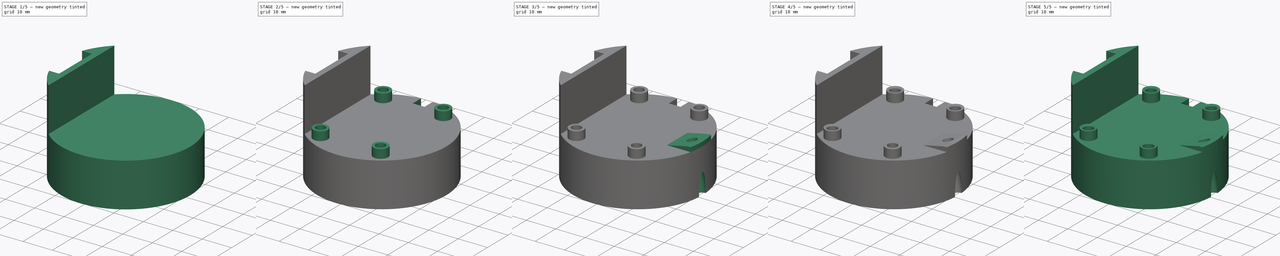
[diagram: build sequence overview — one tinted view per stage of 5, left to right]
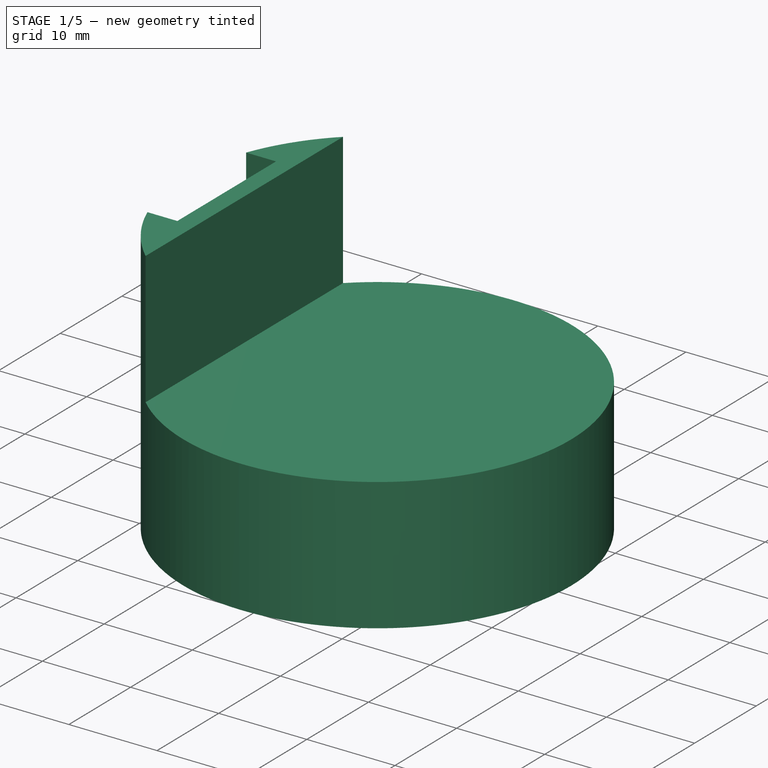
[diagram: stage 1 of 5 — iso view after this stage's code; geometry added in this stage tinted green]
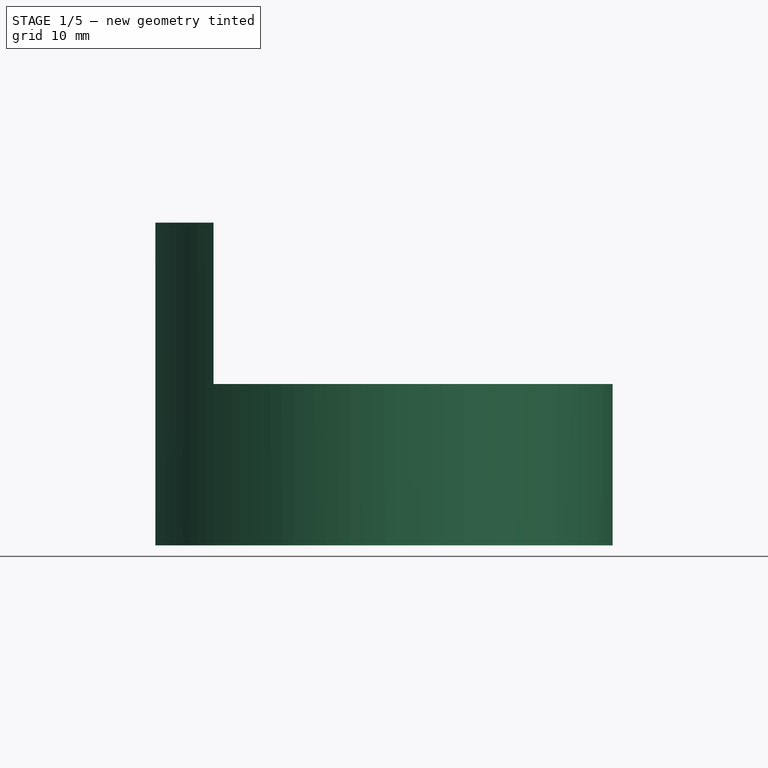
[diagram: stage 1 of 5 — front view after this stage's code; geometry added in this stage tinted green]
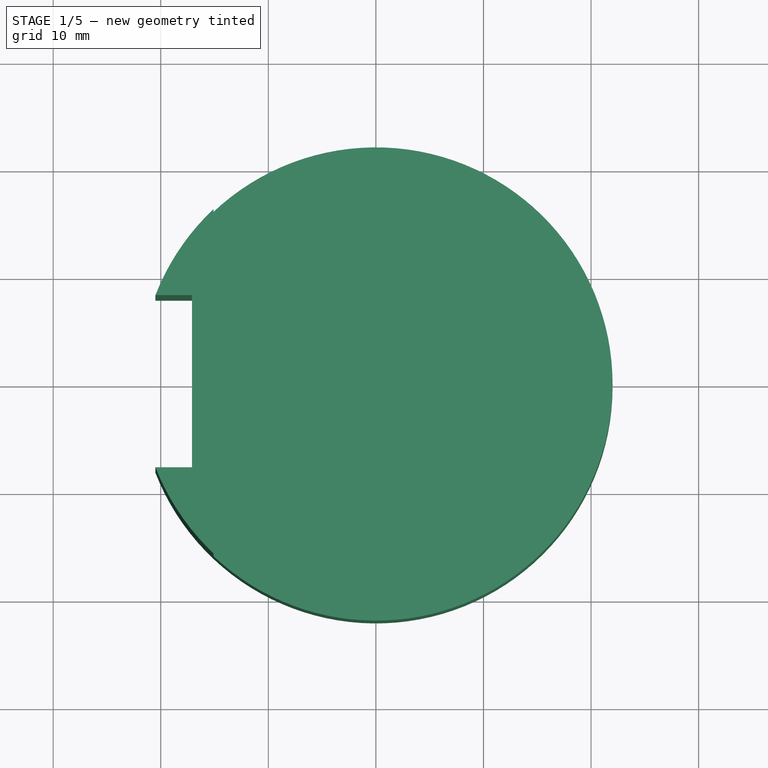
[diagram: stage 1 of 5 — top view after this stage's code; geometry added in this stage tinted green]
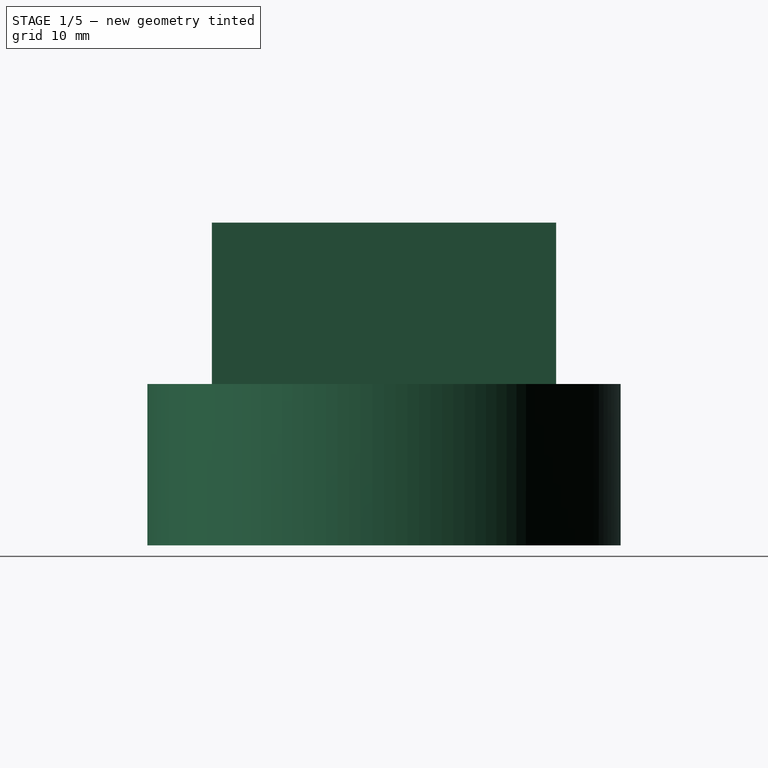
[diagram: stage 1 of 5 — right view after this stage's code; geometry added in this stage tinted green]
FCSTD DOCUMENT  (FreeCAD 0.14R3700 (Git))
Label: ComsMountTop
License: CC-BY 3.0
LicenseURL: http://creativecommons.org/licenses/by/3.0/
objects: Sketcher::SketchObject×11, PartDesign::Pocket×6, PartDesign::Chamfer×6, PartDesign::Pad×5
note: 39 computed .brp shape members not serialized (recipe doc carries the construction recipe); baked Part::Feature solids carry a one-line shape summary decoded from their .brp

FEATURE [Sketcher::SketchObject] Sketch
  sketch-geometry (1):
    g0: Circle CenterX=0 CenterY=0 CenterZ=0 NormalX=0 NormalY=0 NormalZ=1 Radius=22
  constraints (2):
    c: Coincident(g0,g-1)
    c: Radius(g0) = 22
FEATURE [PartDesign::Pad] Pad
  Length = 15
  Length2 = 100
  Sketch = -> Sketch
  Type = 0
FEATURE [Sketcher::SketchObject] Sketch001
  ExternalGeometry = -> [Pad]
  Placement = pos=(0,0,15) rot=(0,0,1;0rad)
  Support = -> Pad [Face3]
  sketch-geometry (2):
    g0: ArcOfCircle CenterX=0 CenterY=0 CenterZ=0 NormalX=0 NormalY=0 NormalZ=1 Radius=22 StartAngle=2.32725 EndAngle=3.95593
    g1: LineSegment StartX=-15.0997 StartY=16 StartZ=0 EndX=-15.0997 EndY=-16 EndZ=0
  constraints (6):
    c: Coincident(g-1,g0)
    c: Equal(g0,g-3)
    c: Coincident(g1,g0)
    c: Coincident(g1,g0)
    c: Symmetric(g0,g0,g-1)
    c: DistanceY(g0,g0) = -32
FEATURE [PartDesign::Pad] Pad001
  Length = 15
  Length2 = 100
  Sketch = -> Sketch001
  Type = 0
FEATURE [Sketcher::SketchObject] Sketch002
  ExternalGeometry = -> [Pad001]
  Placement = pos=(0,0,30) rot=(0,0,1;0rad)
  Support = -> Pad001 [Face6]
  sketch-geometry (4):
    g0: ArcOfCircle CenterX=0 CenterY=0 CenterZ=0 NormalX=0 NormalY=0 NormalZ=1 Radius=22 StartAngle=2.76942 EndAngle=3.51376
    g1: LineSegment StartX=-20.4939 StartY=8 StartZ=0 EndX=-17.0997 EndY=8 EndZ=0
    g2: LineSegment StartX=-17.0997 StartY=8 StartZ=0 EndX=-17.0997 EndY=-8 EndZ=0
    g3: LineSegment StartX=-20.4939 StartY=-8 StartZ=0 EndX=-17.0997 EndY=-8 EndZ=0
  constraints (12):
    c: Coincident(g0,g-1)
    c: Coincident(g1,g0)
    c: Horizontal(g1)
    c: Coincident(g2,g1)
    c: Vertical(g2)
    c: Coincident(g3,g0)
    c: Coincident(g3,g2)
    c: Horizontal(g3)
    c: Equal(g0,g-3)
    c: Symmetric(g1,g2,g-1)
    c: DistanceY(g1,g2) = -16
    c: DistanceX(g1,g-3) = 2
FEATURE [PartDesign::Pocket] Pocket
  Length = 5
  Sketch = -> Sketch002
  Type = 1
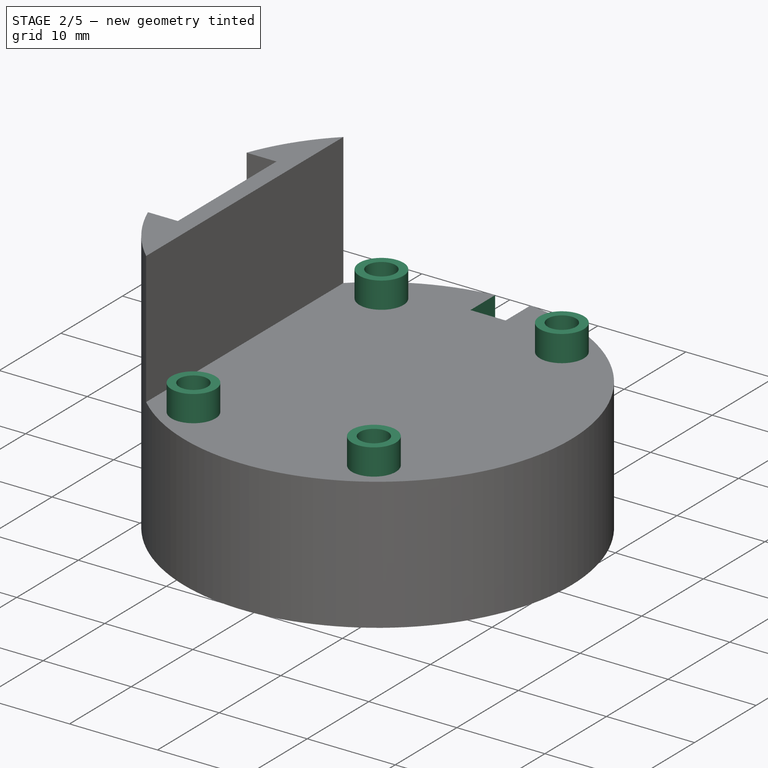
[diagram: stage 2 of 5 — iso view after this stage's code; geometry added in this stage tinted green]
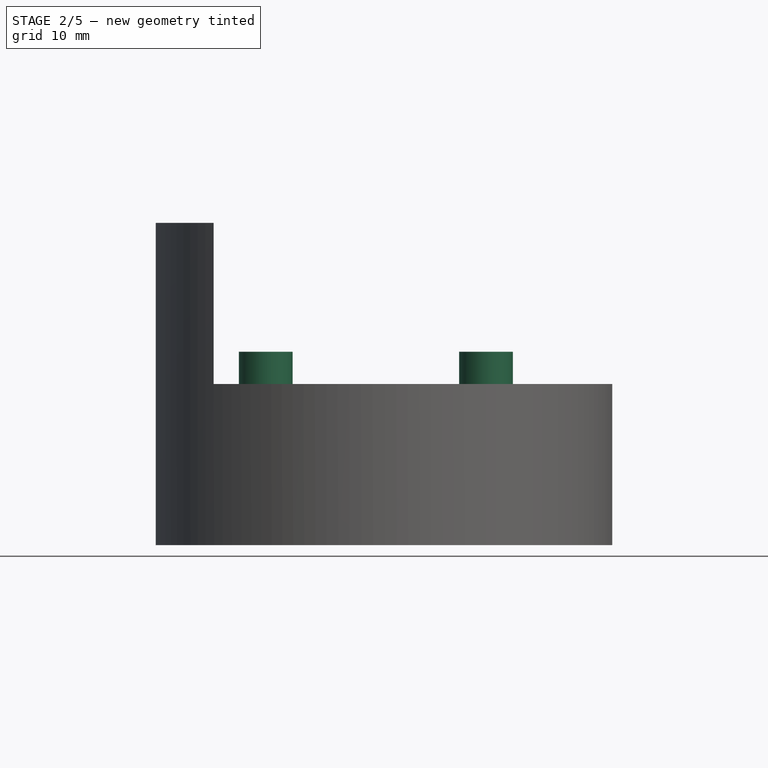
[diagram: stage 2 of 5 — front view after this stage's code; geometry added in this stage tinted green]
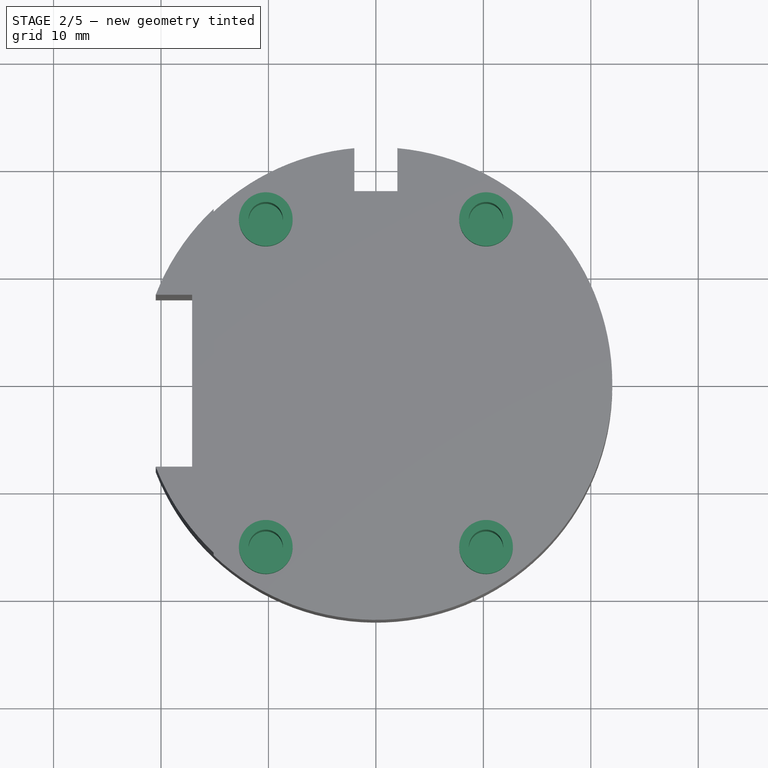
[diagram: stage 2 of 5 — top view after this stage's code; geometry added in this stage tinted green]
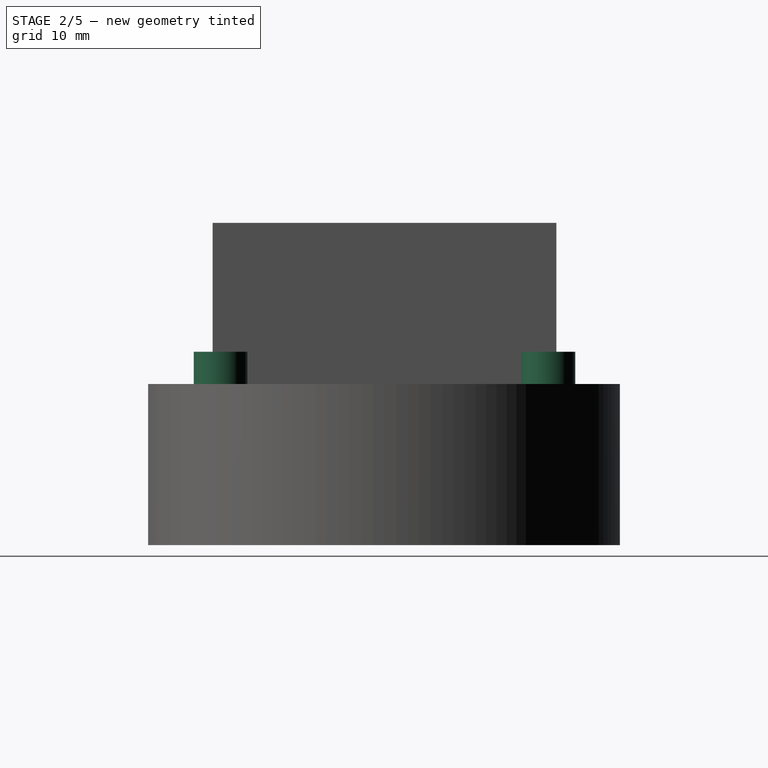
[diagram: stage 2 of 5 — right view after this stage's code; geometry added in this stage tinted green]
FEATURE [Sketcher::SketchObject] Sketch003
  Placement = pos=(0,0,15) rot=(0,0,1;0rad)
  Support = -> Pocket [Face8]
  sketch-geometry (8):
    g0: LineSegment [constr] StartX=-10.25 StartY=15.25 StartZ=0 EndX=10.25 EndY=15.25 EndZ=0
    g1: LineSegment [constr] StartX=10.25 StartY=15.25 StartZ=0 EndX=10.25 EndY=-15.25 EndZ=0
    g2: LineSegment [constr] StartX=10.25 StartY=-15.25 StartZ=0 EndX=-10.25 EndY=-15.25 EndZ=0
    g3: LineSegment [constr] StartX=-10.25 StartY=15.25 StartZ=0 EndX=-10.25 EndY=-15.25 EndZ=0
    g4: Circle CenterX=-10.25 CenterY=15.25 CenterZ=0 NormalX=0 NormalY=0 NormalZ=1 Radius=2.5
    g5: Circle CenterX=10.25 CenterY=15.25 CenterZ=0 NormalX=0 NormalY=0 NormalZ=1 Radius=2.5
    g6: Circle CenterX=-10.25 CenterY=-15.25 CenterZ=0 NormalX=0 NormalY=0 NormalZ=1 Radius=2.5
    g7: Circle CenterX=10.25 CenterY=-15.25 CenterZ=0 NormalX=0 NormalY=0 NormalZ=1 Radius=2.5
  constraints (20):
    c: Horizontal(g0)
    c: Coincident(g1,g0)
    c: Vertical(g1)
    c: Coincident(g3,g0)
    c: Coincident(g3,g2)
    c: Vertical(g3)
    c: Symmetric(g0,g0,g-2)
    c: Symmetric(g0,g1,g-1)
    c: Coincident(g2,g1)
    c: Horizontal(g2)
    c: DistanceY(g0,g1) = -30.5
    c: DistanceX(g0,g0) = 20.5
    c: Coincident(g4,g0)
    c: Coincident(g5,g0)
    c: Coincident(g6,g2)
    c: Coincident(g7,g1)
    c: Equal(g5,g4)
    c: Equal(g5,g7)
    c: Equal(g6,g7)
    c: Radius(g4) = 2.5
FEATURE [PartDesign::Pad] Pad002
  Length = 3
  Length2 = 100
  Sketch = -> Sketch003
  Type = 0
FEATURE [Sketcher::SketchObject] Sketch004
  ExternalGeometry = -> [Pad002]
  Placement = pos=(0,0,18) rot=(0,0,1;0rad)
  Support = -> Pad002 [Face19]
  sketch-geometry (4):
    g0: Circle CenterX=-10.25 CenterY=15.25 CenterZ=0 NormalX=0 NormalY=0 NormalZ=1 Radius=1.6
    g1: Circle CenterX=10.25 CenterY=15.25 CenterZ=0 NormalX=0 NormalY=0 NormalZ=1 Radius=1.6
    g2: Circle CenterX=-10.25 CenterY=-15.25 CenterZ=0 NormalX=0 NormalY=0 NormalZ=1 Radius=1.6
    g3: Circle CenterX=10.25 CenterY=-15.25 CenterZ=0 NormalX=0 NormalY=0 NormalZ=1 Radius=1.6
  constraints (8):
    c: Coincident(g0,g-3)
    c: Coincident(g1,g-4)
    c: Coincident(g2,g-6)
    c: Coincident(g3,g-5)
    c: Equal(g0,g1)
    c: Equal(g1,g3)
    c: Equal(g2,g3)
    c: Radius(g0) = 1.6
FEATURE [PartDesign::Pocket] Pocket001
  Length = 10
  Sketch = -> Sketch004
  Type = 0
FEATURE [Sketcher::SketchObject] Sketch005
  ExternalGeometry = -> [Pocket001]
  Placement = pos=(0,0,15) rot=(0,0,1;0rad)
  Support = -> Pocket001 [Face8]
  sketch-geometry (4):
    g0: ArcOfCircle CenterX=0 CenterY=0 CenterZ=0 NormalX=0 NormalY=0 NormalZ=1 Radius=22 StartAngle=1.47976 EndAngle=1.66183
    g1: LineSegment StartX=-2 StartY=21.9089 StartZ=0 EndX=-2 EndY=17.9089 EndZ=0
    g2: LineSegment StartX=-2 StartY=17.9089 StartZ=0 EndX=2 EndY=17.9089 EndZ=0
    g3: LineSegment StartX=2 StartY=21.9089 StartZ=0 EndX=2 EndY=17.9089 EndZ=0
  constraints (12):
    c: Coincident(g0,g-1)
    c: Coincident(g1,g0)
    c: Vertical(g1)
    c: Coincident(g2,g1)
    c: Horizontal(g2)
    c: Coincident(g3,g0)
    c: Coincident(g3,g2)
    c: Vertical(g3)
    c: Equal(g0,g-3)
    c: Symmetric(g2,g1,g-2)
    c: DistanceY(g2,g0) = 4
    c: DistanceX(g1,g2) = 4
FEATURE [PartDesign::Pocket] Pocket002
  Length = 5
  Sketch = -> Sketch005
  Type = 1
FEATURE [Sketcher::SketchObject] Sketch006
  ExternalGeometry = -> [Pocket002]
  Placement = pos=(-17.0997,0,0) rot=(0.57735,-0.57735,-0.57735;2.0944rad)
  Support = -> Pocket002 [Face8]
  sketch-geometry (4):
    g0: LineSegment StartX=-8 StartY=6.5 StartZ=0 EndX=8 EndY=6.5 EndZ=0
    g1: LineSegment StartX=8 StartY=6.5 StartZ=0 EndX=8 EndY=0 EndZ=0
    g2: LineSegment StartX=8 StartY=0 StartZ=0 EndX=-8 EndY=0 EndZ=0
    g3: LineSegment StartX=-8 StartY=0 StartZ=0 EndX=-8 EndY=6.5 EndZ=0
  constraints (12):
    c: Coincident(g0,g1)
    c: Coincident(g1,g2)
    c: Coincident(g2,g3)
    c: Coincident(g3,g0)
    c: Horizontal(g0)
    c: Horizontal(g2)
    c: Vertical(g1)
    c: Vertical(g3)
    c: PointOnObject(g1,g-5)
    c: PointOnObject(g1,g-4)
    c: PointOnObject(g2,g-3)
    c: DistanceY(g0,g1) = -6.5
FEATURE [PartDesign::Pocket] Pocket003
  Length = 12
  Sketch = -> Sketch006
  Type = 0
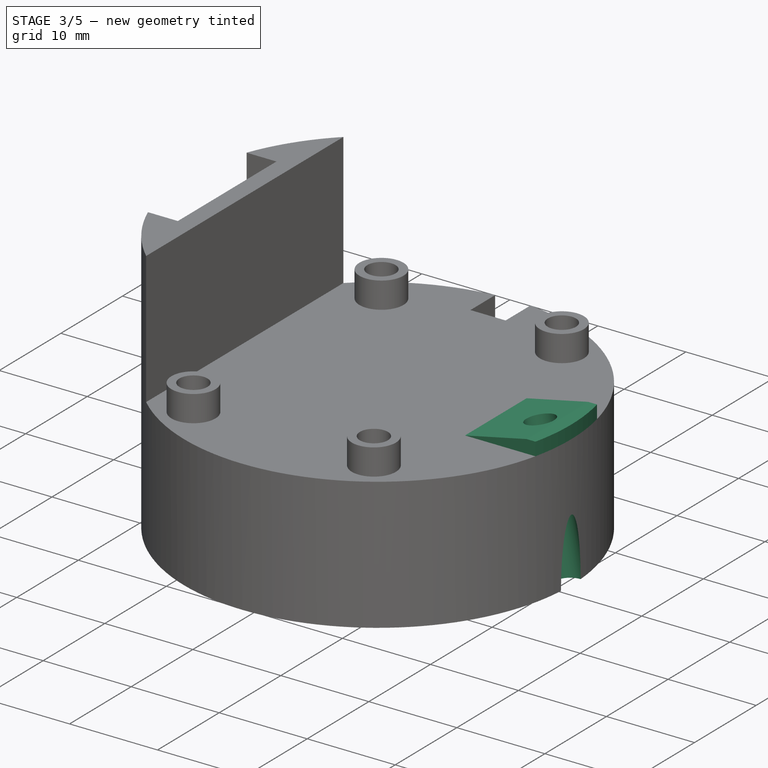
[diagram: stage 3 of 5 — iso view after this stage's code; geometry added in this stage tinted green]
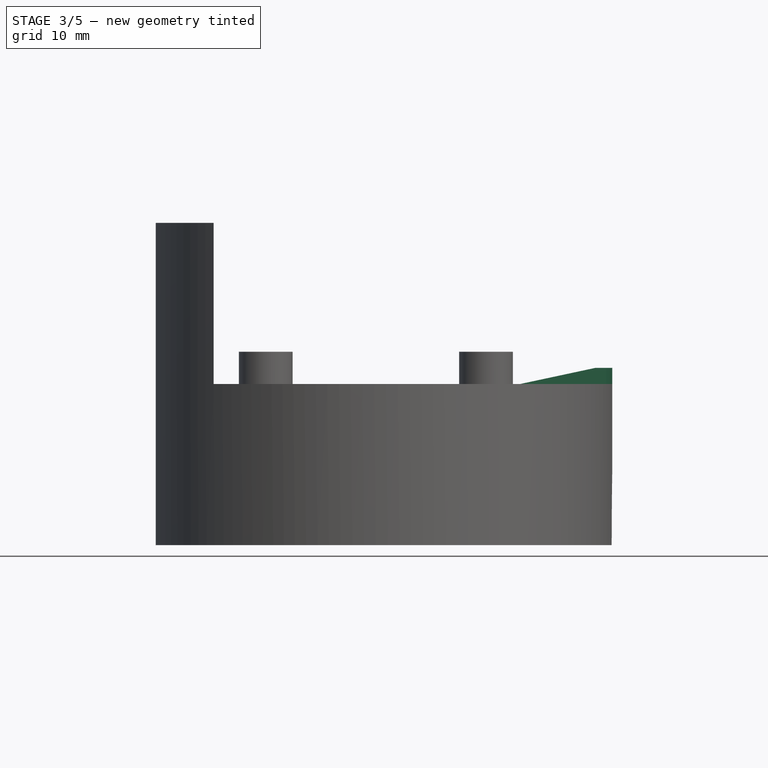
[diagram: stage 3 of 5 — front view after this stage's code; geometry added in this stage tinted green]
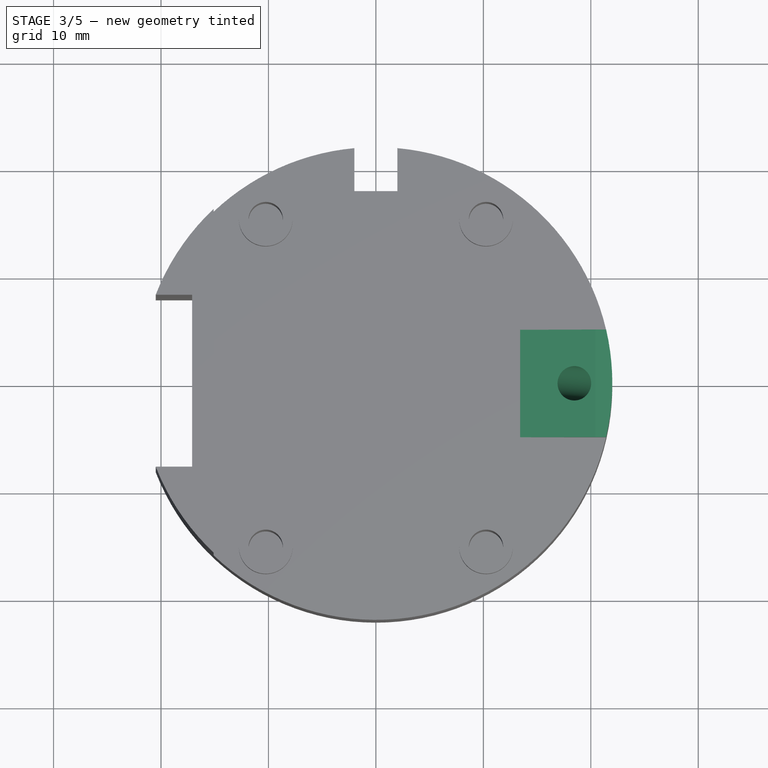
[diagram: stage 3 of 5 — top view after this stage's code; geometry added in this stage tinted green]
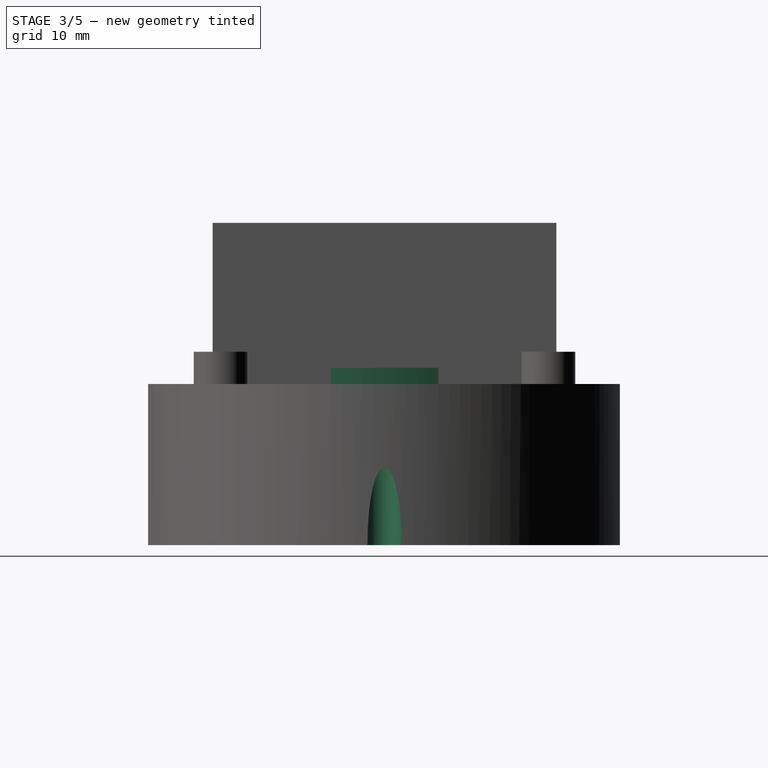
[diagram: stage 3 of 5 — right view after this stage's code; geometry added in this stage tinted green]
FEATURE [Sketcher::SketchObject] Sketch007
  ExternalGeometry = -> [Pocket003]
  Placement = pos=(0,0,15) rot=(0,0,1;0rad)
  Support = -> Pocket003 [Face13]
  sketch-geometry (4):
    g0: ArcOfCircle CenterX=0 CenterY=0 CenterZ=0 NormalX=0 NormalY=0 NormalZ=1 Radius=22 StartAngle=6.05391 EndAngle=6.51246
    g1: LineSegment StartX=21.4243 StartY=5 StartZ=0 EndX=20.4243 EndY=5 EndZ=0
    g2: LineSegment StartX=20.4243 StartY=5 StartZ=0 EndX=20.4243 EndY=-5 EndZ=0
    g3: LineSegment StartX=20.4243 StartY=-5 StartZ=0 EndX=21.4243 EndY=-5 EndZ=0
  constraints (12):
    c: Coincident(g0,g-1)
    c: Equal(g0,g-3)
    c: Symmetric(g0,g0,g-1)
    c: DistanceY(g0,g0) = -10
    c: Coincident(g1,g0)
    c: Horizontal(g1)
    c: Coincident(g2,g1)
    c: Vertical(g2)
    c: Coincident(g3,g2)
    c: Coincident(g3,g0)
    c: Horizontal(g3)
    c: DistanceX(g1,g0) = 1
FEATURE [PartDesign::Pad] Pad003
  Length = 1.5
  Length2 = 100
  Sketch = -> Sketch007
  Type = 0
FEATURE [Sketcher::SketchObject] Sketch008
  ExternalGeometry = -> [Pad003]
  Placement = pos=(0,-5,0) rot=(1,0,0;1.5708rad)
  Support = -> Pad003 [Face20]
  sketch-geometry (3):
    g0: LineSegment StartX=20.4243 StartY=16.5 StartZ=0 EndX=13.4243 EndY=15 EndZ=0
    g1: LineSegment StartX=13.4243 StartY=15 StartZ=0 EndX=20.4243 EndY=15 EndZ=0
    g2: LineSegment StartX=20.4243 StartY=15 StartZ=0 EndX=20.4243 EndY=16.5 EndZ=0
  constraints (7):
    c: Coincident(g0,g-4)
    c: Coincident(g1,g0)
    c: Horizontal(g1)
    c: Coincident(g1,g-4)
    c: DistanceX(g1,g0) = -7
    c: Coincident(g2,g1)
    c: Coincident(g2,g0)
FEATURE [PartDesign::Pad] Pad004
  Length = 10
  Length2 = 100
  Reversed = true
  Sketch = -> Sketch008
  Type = 0
FEATURE [Sketcher::SketchObject] Sketch009
  ExternalGeometry = -> [Pad004]
  Placement = pos=(-2.48381,0,11.5911) rot=(0,-1,0;0.211093rad)
  Support = -> Pad004 [Face25]
  sketch-geometry (2):
    g0: Circle CenterX=21.4281 CenterY=0 CenterZ=0 NormalX=0 NormalY=0 NormalZ=1 Radius=1.6
    g1: LineSegment [constr] StartX=21.4281 StartY=0 StartZ=0 EndX=23.4281 EndY=0 EndZ=0
  constraints (5):
    c: PointOnObject(g0,g-1)
    c: Coincident(g1,g0)
    c: Distance(g1) = 2
    c: Radius(g0) = 1.6
    c: PointOnObject(g1,g-3)
FEATURE [PartDesign::Pocket] Pocket004
  Length = 5
  Sketch = -> Sketch009
  Type = 1
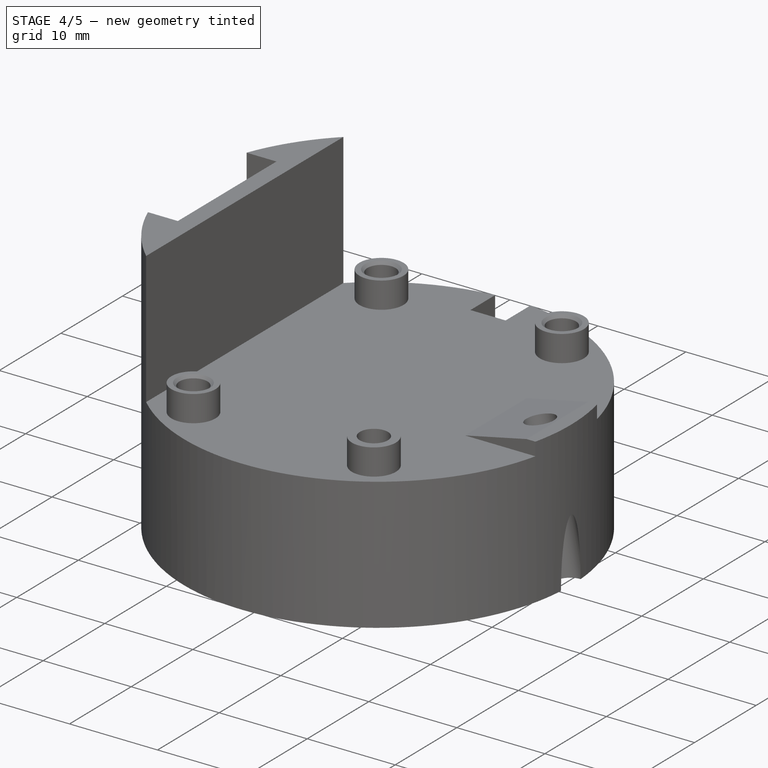
[diagram: stage 4 of 5 — iso view after this stage's code; geometry added in this stage tinted green]
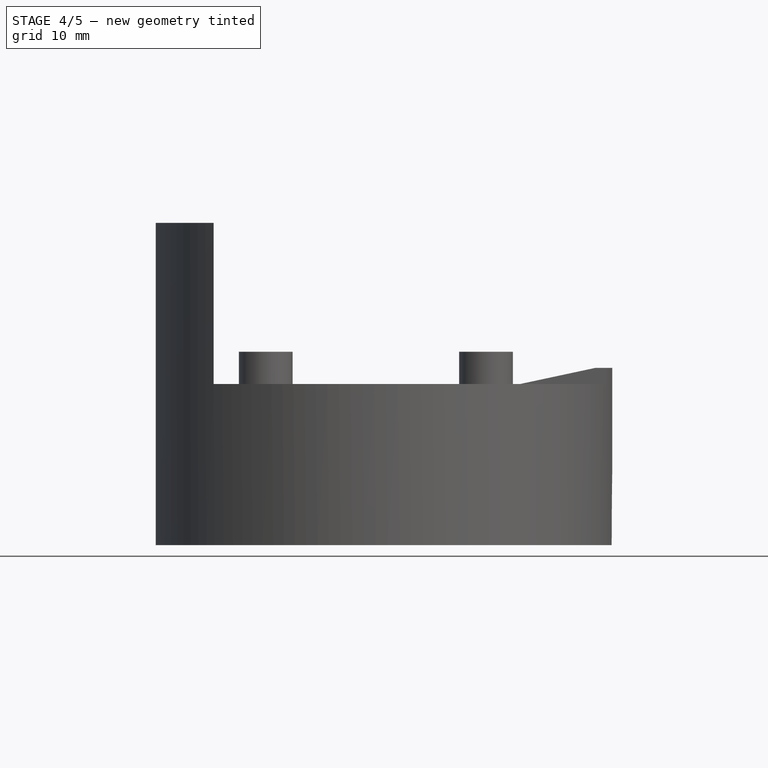
[diagram: stage 4 of 5 — front view after this stage's code; geometry added in this stage tinted green]
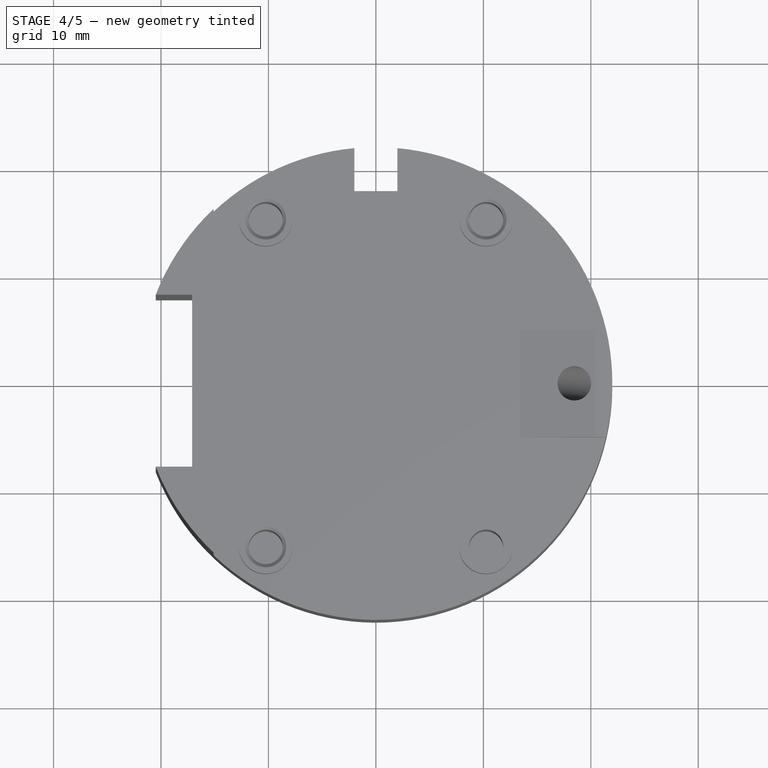
[diagram: stage 4 of 5 — top view after this stage's code; geometry added in this stage tinted green]
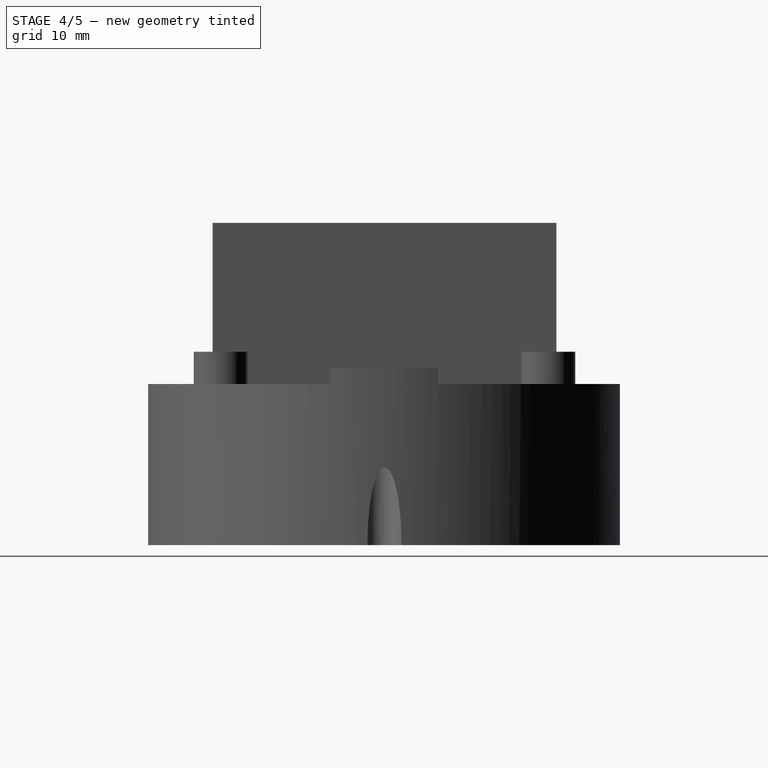
[diagram: stage 4 of 5 — right view after this stage's code; geometry added in this stage tinted green]
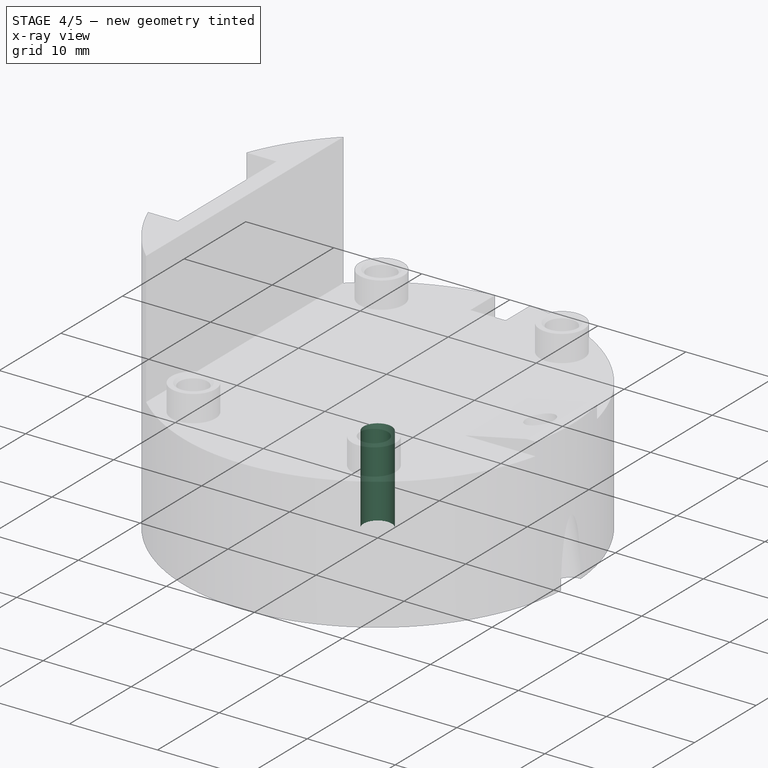
[diagram: stage 4 of 5 — x-ray composite at the iso view; earlier geometry ghosted, this stage's added geometry solid]
FEATURE [Sketcher::SketchObject] Sketch010
  Placement = pos=(0,0,0) rot=(1,0,0;3.14159rad)
  Support = -> Pocket004 [Face1]
  sketch-geometry (1):
    g0: Circle CenterX=0 CenterY=0 CenterZ=0 NormalX=0 NormalY=0 NormalZ=1 Radius=1.6
  constraints (2):
    c: Coincident(g0,g-1)
    c: Radius(g0) = 1.6
FEATURE [PartDesign::Pocket] Pocket005
  Length = 10
  Sketch = -> Sketch010
  Type = 0
FEATURE [PartDesign::Chamfer] Chamfer
  Base = -> Pocket005 [Edge85]
  Size = 0.3
FEATURE [PartDesign::Chamfer] Chamfer001
  Base = -> Chamfer [Edge84]
  Size = 0.3
FEATURE [PartDesign::Chamfer] Chamfer002
  Base = -> Chamfer001 [Edge83]
  Size = 0.3
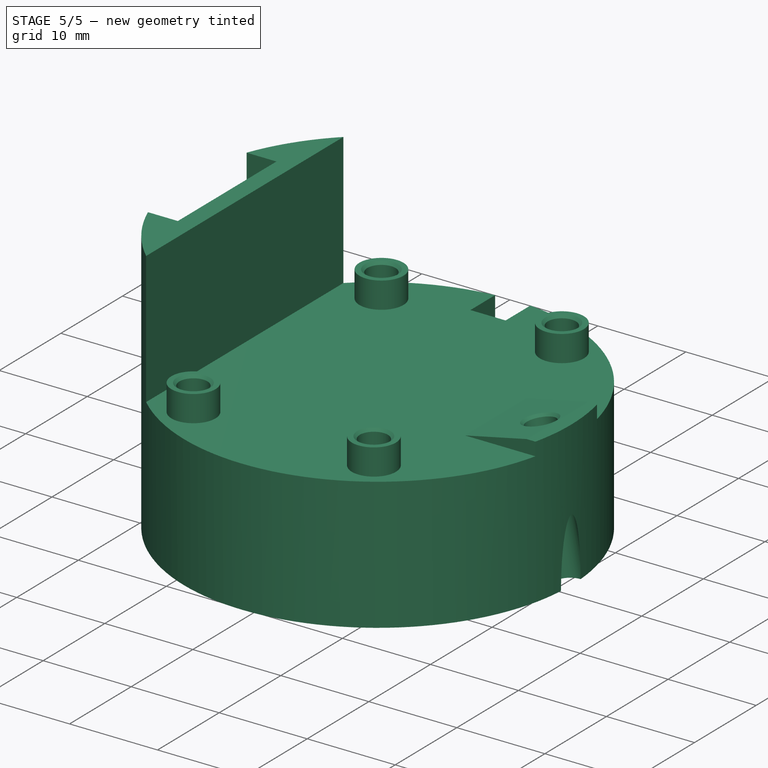
[diagram: stage 5 of 5 — iso view after this stage's code; geometry added in this stage tinted green]
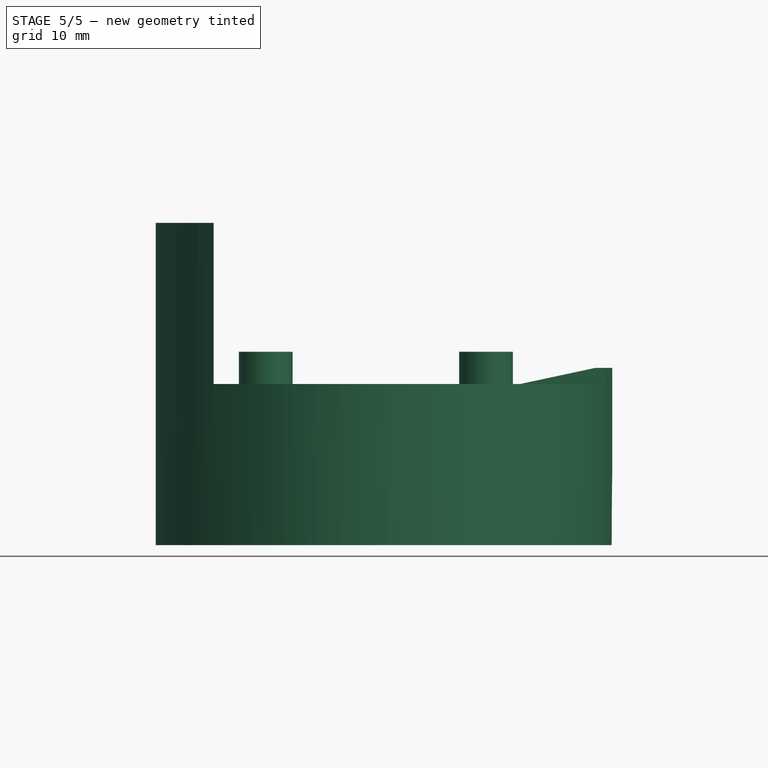
[diagram: stage 5 of 5 — front view after this stage's code; geometry added in this stage tinted green]
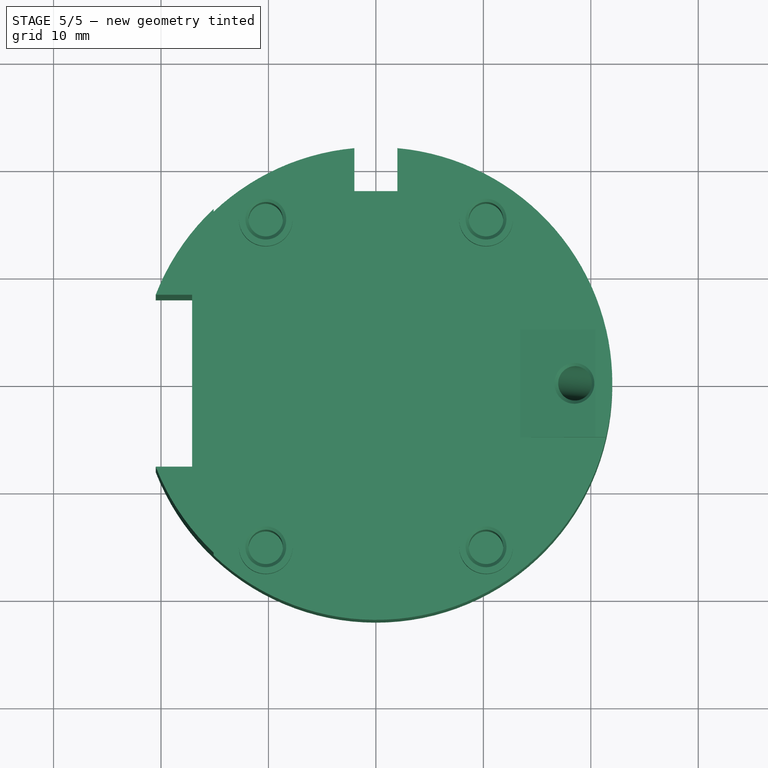
[diagram: stage 5 of 5 — top view after this stage's code; geometry added in this stage tinted green]
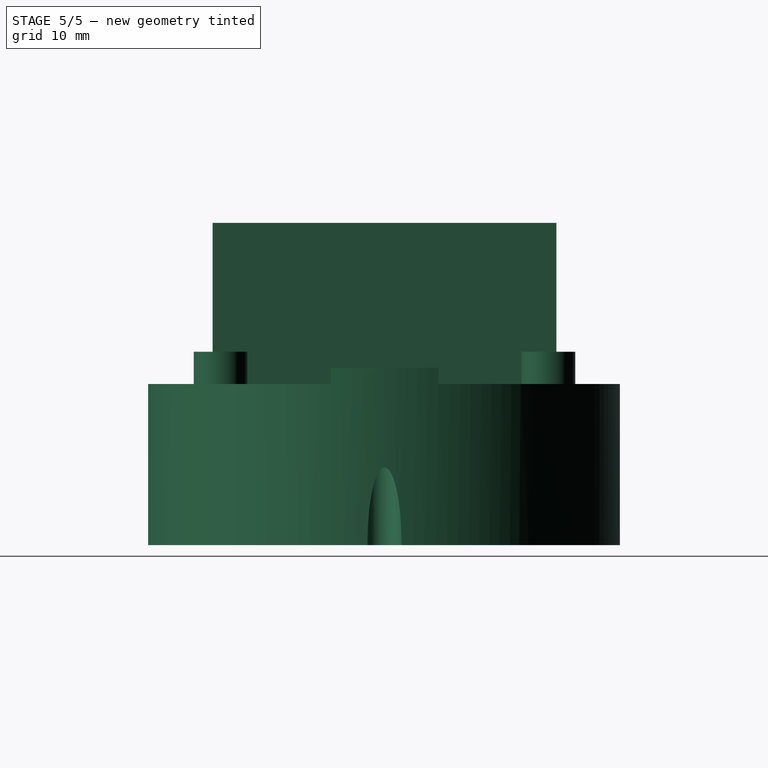
[diagram: stage 5 of 5 — right view after this stage's code; geometry added in this stage tinted green]
FEATURE [PartDesign::Chamfer] Chamfer003
  Base = -> Chamfer002 [Edge83]
  Size = 0.3
FEATURE [PartDesign::Chamfer] Chamfer004
  Base = -> Chamfer003 [Edge52]
  Size = 0.3
FEATURE [PartDesign::Chamfer] Chamfer005
  Base = -> Chamfer004 [Edge67]
  Size = 0.3
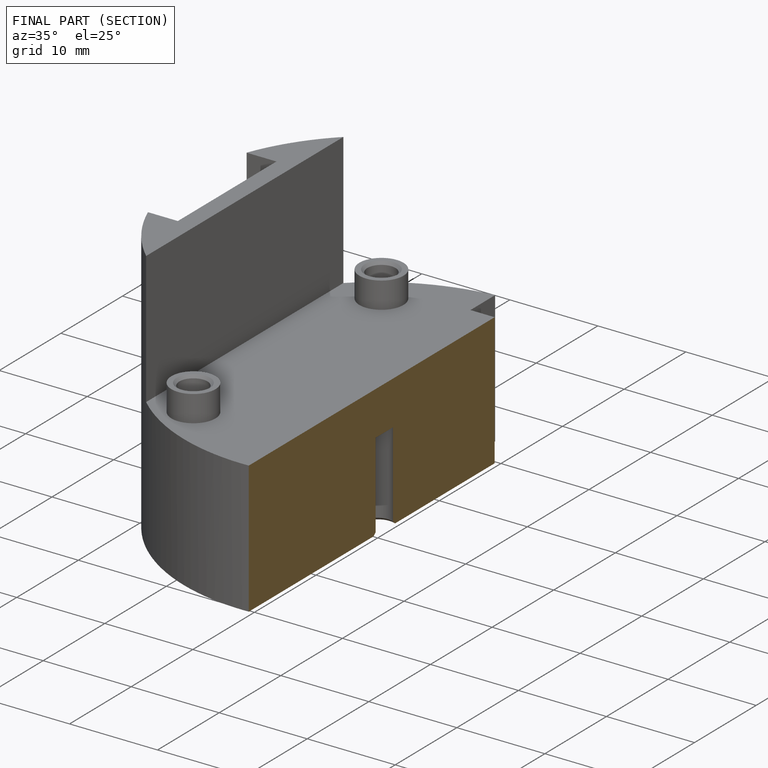
[diagram: finished part — half-section view (interior)]
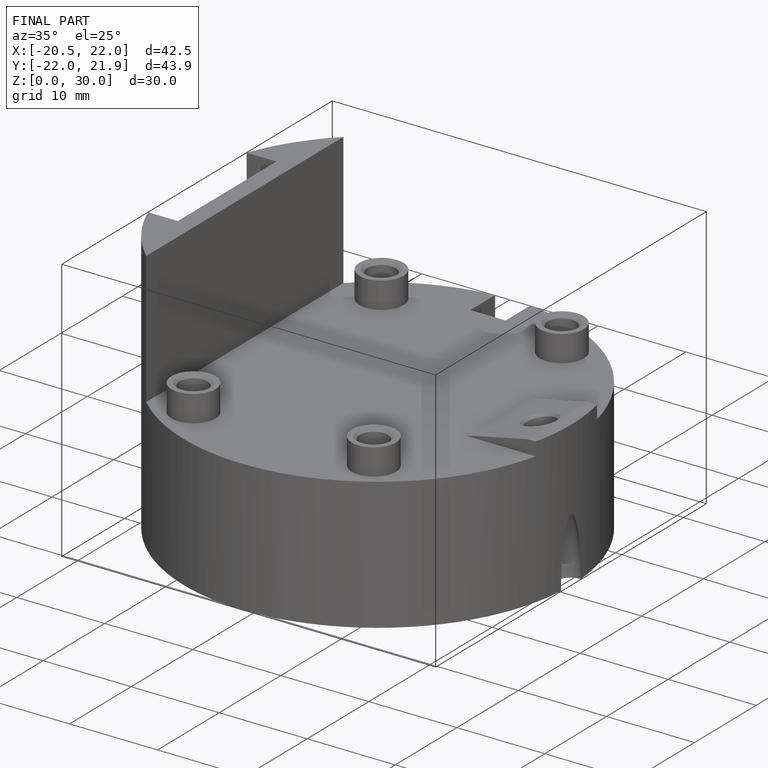
[diagram: finished part — iso view with bounding-box wireframe]
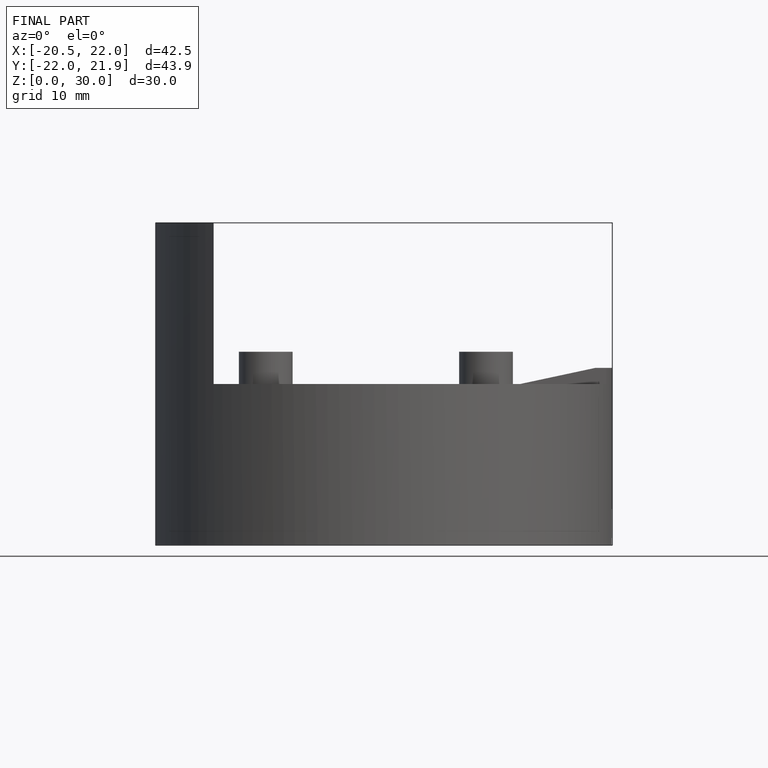
[diagram: finished part — front view with bounding-box wireframe]
